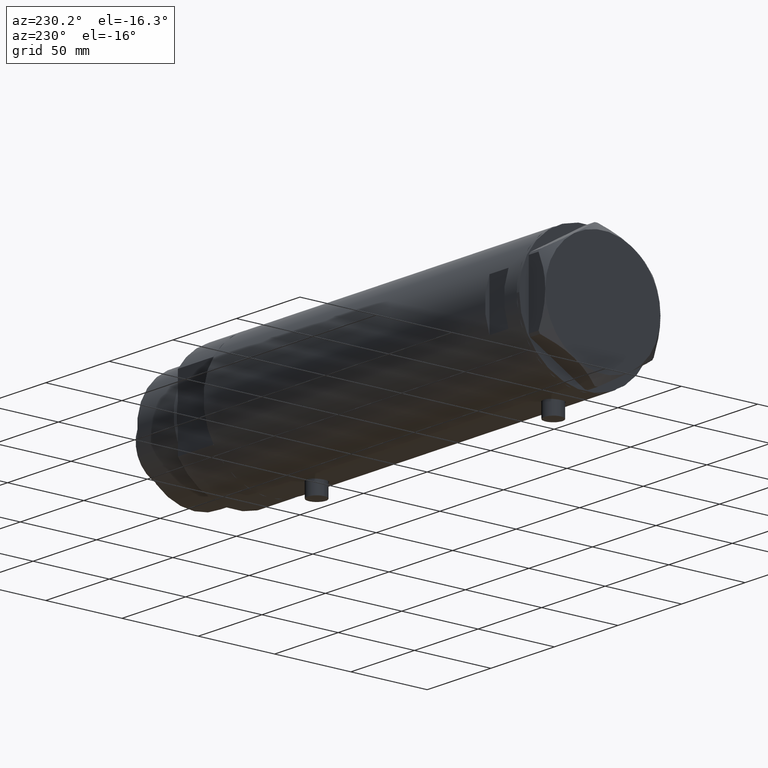
[diagram: clean part render]
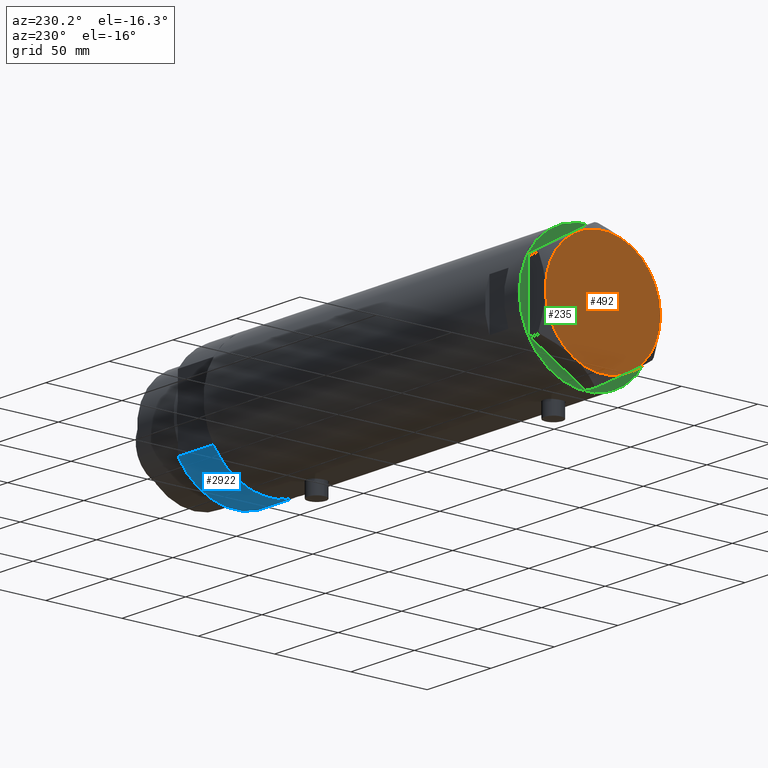
[diagram: same view with three faces highlighted in distinct colors, each labeled with its STEP entity id]
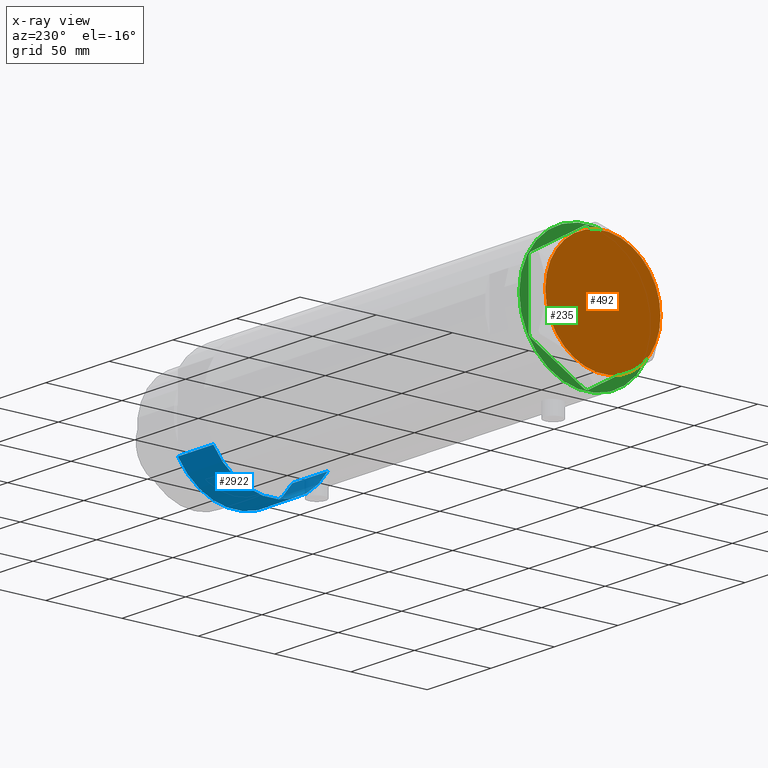
[diagram: x-ray of the same camera — body ghosted, the three highlighted faces saturated]
A machine part, auxiliary view with three faces highlighted in distinct colors.
The next image is the same camera in x-ray (body ghosted, the three faces saturated) — at least one of them is partly hidden behind the body in this view.
Their STEP definitions:

[orange] entity #492 — the highlighted planar face has unit normal (-1, -0, 0).
#17 = ORIENTED_EDGE ( 'NONE', *, *, #2616, .T. ) ;
#62 = CIRCLE ( 'NONE', #2291, 37.75000000000000000 ) ;
#80 = CIRCLE ( 'NONE', #3258, 37.75000000000000000 ) ;
#107 = VERTEX_POINT ( 'NONE', #3582 ) ;
#146 = DIRECTION ( 'NONE',  ( 0.000000000000000000, 0.000000000000000000, 1.000000000000000000 ) ) ;
#176 = CARTESIAN_POINT ( 'NONE',  ( 0.000000000000000000, 0.000000000000000000, 13.00000000000000000 ) ) ;
#196 = DIRECTION ( 'NONE',  ( 0.000000000000000000, 0.000000000000000000, 1.000000000000000000 ) ) ;
#427 = DIRECTION ( 'NONE',  ( 0.000000000000000000, 0.000000000000000000, 1.000000000000000000 ) ) ;
#478 = CARTESIAN_POINT ( 'NONE',  ( 18.87500000000000000, 32.69245899286255508, 13.00000000000000000 ) ) ;
#492 = ADVANCED_FACE ( 'NONE', ( #1419 ), #3197, .T. ) ;
#515 = AXIS2_PLACEMENT_3D ( 'NONE', #1347, #641, #4163 ) ;
#641 = DIRECTION ( 'NONE',  ( 0.000000000000000000, 0.000000000000000000, 1.000000000000000000 ) ) ;
#684 = EDGE_CURVE ( 'NONE', #3015, #3070, #62, .T. ) ;
#735 = CARTESIAN_POINT ( 'NONE',  ( 0.000000000000000000, 0.000000000000000000, 13.00000000000000000 ) ) ;
#789 = DIRECTION ( 'NONE',  ( 1.000000000000000000, 0.000000000000000000, -0.000000000000000000 ) ) ;
#820 = CARTESIAN_POINT ( 'NONE',  ( 0.000000000000000000, 0.000000000000000000, 13.00000000000000000 ) ) ;
#848 = VERTEX_POINT ( 'NONE', #1410 ) ;
#882 = CIRCLE ( 'NONE', #4548, 37.75000000000000000 ) ;
#936 = AXIS2_PLACEMENT_3D ( 'NONE', #735, #2838, #789 ) ;
#957 = CIRCLE ( 'NONE', #4117, 37.75000000000000000 ) ;
#1003 = EDGE_LOOP ( 'NONE', ( #2859, #1971, #1766, #3907, #17, #4032 ) ) ;
#1249 = DIRECTION ( 'NONE',  ( 1.000000000000000000, 0.000000000000000000, 0.000000000000000000 ) ) ;
#1258 = CIRCLE ( 'NONE', #515, 37.75000000000000000 ) ;
#1347 = CARTESIAN_POINT ( 'NONE',  ( 0.000000000000000000, 0.000000000000000000, 13.00000000000000000 ) ) ;
#1410 = CARTESIAN_POINT ( 'NONE',  ( 37.75000000000000711, 1.802777518484591547E-14, 13.00000000000000000 ) ) ;
#1419 = FACE_OUTER_BOUND ( 'NONE', #1003, .T. ) ;
#1552 = AXIS2_PLACEMENT_3D ( 'NONE', #176, #196, #1249 ) ;
#1766 = ORIENTED_EDGE ( 'NONE', *, *, #3900, .T. ) ;
#1802 = DIRECTION ( 'NONE',  ( 1.000000000000000000, 0.000000000000000000, 0.000000000000000000 ) ) ;
#1891 = CARTESIAN_POINT ( 'NONE',  ( 0.000000000000000000, 0.000000000000000000, 13.00000000000000000 ) ) ;
#1971 = ORIENTED_EDGE ( 'NONE', *, *, #2494, .T. ) ;
#1991 = EDGE_CURVE ( 'NONE', #107, #848, #882, .T. ) ;
#2171 = EDGE_CURVE ( 'NONE', #3914, #107, #1258, .T. ) ;
#2291 = AXIS2_PLACEMENT_3D ( 'NONE', #3189, #4233, #1802 ) ;
#2453 = CARTESIAN_POINT ( 'NONE',  ( -37.75000000000000000, -1.201851678989727067E-14, 13.00000000000000000 ) ) ;
#2494 = EDGE_CURVE ( 'NONE', #848, #3928, #3543, .T. ) ;
#2572 = CARTESIAN_POINT ( 'NONE',  ( -18.87499999999999645, -32.69245899286255508, 13.00000000000000000 ) ) ;
#2616 = EDGE_CURVE ( 'NONE', #3070, #3914, #80, .T. ) ;
#2838 = DIRECTION ( 'NONE',  ( 0.000000000000000000, 0.000000000000000000, 1.000000000000000000 ) ) ;
#2859 = ORIENTED_EDGE ( 'NONE', *, *, #1991, .T. ) ;
#2987 = DIRECTION ( 'NONE',  ( 0.000000000000000000, 0.000000000000000000, 1.000000000000000000 ) ) ;
#3015 = VERTEX_POINT ( 'NONE', #4403 ) ;
#3070 = VERTEX_POINT ( 'NONE', #2453 ) ;
#3189 = CARTESIAN_POINT ( 'NONE',  ( 0.000000000000000000, 0.000000000000000000, 13.00000000000000000 ) ) ;
#3197 = PLANE ( 'NONE',  #936 ) ;
#3258 = AXIS2_PLACEMENT_3D ( 'NONE', #4000, #2987, #4364 ) ;
#3305 = DIRECTION ( 'NONE',  ( 1.000000000000000000, 0.000000000000000000, 0.000000000000000000 ) ) ;
#3543 = CIRCLE ( 'NONE', #1552, 37.75000000000000000 ) ;
#3582 = CARTESIAN_POINT ( 'NONE',  ( 18.87499999999998579, -32.69245899286256218, 13.00000000000000000 ) ) ;
#3900 = EDGE_CURVE ( 'NONE', #3928, #3015, #957, .T. ) ;
#3907 = ORIENTED_EDGE ( 'NONE', *, *, #684, .T. ) ;
#3914 = VERTEX_POINT ( 'NONE', #2572 ) ;
#3928 = VERTEX_POINT ( 'NONE', #478 ) ;
#3948 = DIRECTION ( 'NONE',  ( 1.000000000000000000, 0.000000000000000000, 0.000000000000000000 ) ) ;
#4000 = CARTESIAN_POINT ( 'NONE',  ( 0.000000000000000000, 0.000000000000000000, 13.00000000000000000 ) ) ;
#4032 = ORIENTED_EDGE ( 'NONE', *, *, #2171, .T. ) ;
#4117 = AXIS2_PLACEMENT_3D ( 'NONE', #820, #427, #3948 ) ;
#4163 = DIRECTION ( 'NONE',  ( 1.000000000000000000, 0.000000000000000000, 0.000000000000000000 ) ) ;
#4233 = DIRECTION ( 'NONE',  ( 0.000000000000000000, 0.000000000000000000, 1.000000000000000000 ) ) ;
#4364 = DIRECTION ( 'NONE',  ( 1.000000000000000000, 0.000000000000000000, 0.000000000000000000 ) ) ;
#4403 = CARTESIAN_POINT ( 'NONE',  ( -18.87499999999999645, 32.69245899286256218, 13.00000000000000000 ) ) ;
#4548 = AXIS2_PLACEMENT_3D ( 'NONE', #1891, #146, #3305 ) ;

[blue] entity #2922 — the highlighted cylindrical surface (partial cylindrical patch) has radius 44 mm, axis along (-1, -0, 0).
#36 = CARTESIAN_POINT ( 'NONE',  ( 23.01629857296780557, -37.50000000000000000, 0.000000000000000000 ) ) ;
#116 = EDGE_LOOP ( 'NONE', ( #3504, #1532, #2643, #4335 ) ) ;
#216 = AXIS2_PLACEMENT_3D ( 'NONE', #1936, #4441, #2292 ) ;
#252 = CARTESIAN_POINT ( 'NONE',  ( 23.01629857296780557, 37.50000000000000000, 0.000000000000000000 ) ) ;
#290 = CARTESIAN_POINT ( 'NONE',  ( 23.01629857296780557, 37.50000000000000000, 27.89999999999999858 ) ) ;
#546 = CYLINDRICAL_SURFACE ( 'NONE', #216, 44.00000000000000000 ) ;
#937 = DIRECTION ( 'NONE',  ( 1.000000000000000000, 0.000000000000000000, 0.000000000000000000 ) ) ;
#1070 = DIRECTION ( 'NONE',  ( 0.000000000000000000, 0.000000000000000000, 1.000000000000000000 ) ) ;
#1218 = LINE ( 'NONE', #252, #4408 ) ;
#1300 = DIRECTION ( 'NONE',  ( 0.000000000000000000, 0.000000000000000000, 1.000000000000000000 ) ) ;
#1452 = DIRECTION ( 'NONE',  ( -0.000000000000000000, -0.000000000000000000, 1.000000000000000000 ) ) ;
#1532 = ORIENTED_EDGE ( 'NONE', *, *, #1672, .F. ) ;
#1672 = EDGE_CURVE ( 'NONE', #2733, #3821, #3210, .T. ) ;
#1745 = VERTEX_POINT ( 'NONE', #290 ) ;
#1817 = DIRECTION ( 'NONE',  ( 1.000000000000000000, 0.000000000000000000, 0.000000000000000000 ) ) ;
#1862 = CIRCLE ( 'NONE', #4344, 44.00000000000000000 ) ;
#1883 = EDGE_CURVE ( 'NONE', #3821, #1745, #2964, .T. ) ;
#1936 = CARTESIAN_POINT ( 'NONE',  ( 0.000000000000000000, 0.000000000000000000, 27.89999999999999858 ) ) ;
#1975 = FACE_OUTER_BOUND ( 'NONE', #116, .T. ) ;
#2060 = CARTESIAN_POINT ( 'NONE',  ( 23.01629857296780557, -37.50000000000000000, 27.89999999999999858 ) ) ;
#2139 = AXIS2_PLACEMENT_3D ( 'NONE', #3180, #1070, #1817 ) ;
#2292 = DIRECTION ( 'NONE',  ( -1.000000000000000000, 0.000000000000000000, 0.000000000000000000 ) ) ;
#2402 = VERTEX_POINT ( 'NONE', #2905 ) ;
#2643 = ORIENTED_EDGE ( 'NONE', *, *, #3720, .T. ) ;
#2733 = VERTEX_POINT ( 'NONE', #3912 ) ;
#2905 = CARTESIAN_POINT ( 'NONE',  ( 23.01629857296780557, 37.50000000000000000, 0.000000000000000000 ) ) ;
#2922 = ADVANCED_FACE ( 'NONE', ( #1975 ), #546, .T. ) ;
#2950 = EDGE_CURVE ( 'NONE', #2402, #1745, #1218, .T. ) ;
#2964 = CIRCLE ( 'NONE', #2139, 44.00000000000000000 ) ;
#3180 = CARTESIAN_POINT ( 'NONE',  ( 0.000000000000000000, 0.000000000000000000, 27.89999999999999858 ) ) ;
#3210 = LINE ( 'NONE', #36, #3895 ) ;
#3504 = ORIENTED_EDGE ( 'NONE', *, *, #1883, .F. ) ;
#3720 = EDGE_CURVE ( 'NONE', #2733, #2402, #1862, .T. ) ;
#3773 = DIRECTION ( 'NONE',  ( -0.000000000000000000, -0.000000000000000000, 1.000000000000000000 ) ) ;
#3821 = VERTEX_POINT ( 'NONE', #2060 ) ;
#3895 = VECTOR ( 'NONE', #1452, 1000.000000000000000 ) ;
#3912 = CARTESIAN_POINT ( 'NONE',  ( 23.01629857296780557, -37.50000000000000000, 0.000000000000000000 ) ) ;
#4335 = ORIENTED_EDGE ( 'NONE', *, *, #2950, .T. ) ;
#4344 = AXIS2_PLACEMENT_3D ( 'NONE', #4435, #1300, #937 ) ;
#4408 = VECTOR ( 'NONE', #3773, 1000.000000000000000 ) ;
#4435 = CARTESIAN_POINT ( 'NONE',  ( 0.000000000000000000, 0.000000000000000000, 0.000000000000000000 ) ) ;
#4441 = DIRECTION ( 'NONE',  ( -0.000000000000000000, -0.000000000000000000, -1.000000000000000000 ) ) ;

[green] entity #235 — the highlighted planar face has unit normal (1, 0, -0).
#77 = EDGE_CURVE ( 'NONE', #3870, #4129, #1178, .T. ) ;
#165 = CARTESIAN_POINT ( 'NONE',  ( 44.00000000000000000, 0.000000000000000000, 0.000000000000000000 ) ) ;
#235 = ADVANCED_FACE ( 'NONE', ( #1297, #2806 ), #2831, .F. ) ;
#244 = VERTEX_POINT ( 'NONE', #2435 ) ;
#282 = EDGE_CURVE ( 'NONE', #2585, #3029, #675, .T. ) ;
#354 = LINE ( 'NONE', #4539, #1317 ) ;
#356 = VECTOR ( 'NONE', #2645, 1000.000000000000000 ) ;
#456 = VERTEX_POINT ( 'NONE', #3492 ) ;
#459 = CARTESIAN_POINT ( 'NONE',  ( 0.000000000000000000, 43.58994532381674247, 0.000000000000000000 ) ) ;
#477 = ORIENTED_EDGE ( 'NONE', *, *, #1913, .F. ) ;
#491 = DIRECTION ( 'NONE',  ( 0.8660254037844385966, -0.4999999999999998890, 0.000000000000000000 ) ) ;
#503 = CARTESIAN_POINT ( 'NONE',  ( -0.9699484522385920515, -43.02994532381674020, 0.000000000000000000 ) ) ;
#512 = LINE ( 'NONE', #3207, #1546 ) ;
#545 = DIRECTION ( 'NONE',  ( -1.000000000000000000, -0.000000000000000000, -0.000000000000000000 ) ) ;
#573 = VECTOR ( 'NONE', #4330, 1000.000000000000114 ) ;
#582 = CARTESIAN_POINT ( 'NONE',  ( -37.74999999999999289, -20.67497266190837379, 0.000000000000000000 ) ) ;
#595 = AXIS2_PLACEMENT_3D ( 'NONE', #1580, #2985, #839 ) ;
#597 = CARTESIAN_POINT ( 'NONE',  ( 0.9699484522385760643, -43.02994532381674020, 0.000000000000000000 ) ) ;
#598 = EDGE_CURVE ( 'NONE', #4211, #2703, #917, .T. ) ;
#675 = LINE ( 'NONE', #2092, #3885 ) ;
#702 = VERTEX_POINT ( 'NONE', #503 ) ;
#727 = CARTESIAN_POINT ( 'NONE',  ( 37.26502577388077242, -21.51497266190830260, 0.000000000000000000 ) ) ;
#752 = ORIENTED_EDGE ( 'NONE', *, *, #2233, .T. ) ;
#753 = ORIENTED_EDGE ( 'NONE', *, *, #4399, .T. ) ;
#794 = CARTESIAN_POINT ( 'NONE',  ( -36.78005154776143826, 22.35497266190836996, 0.000000000000000000 ) ) ;
#803 = EDGE_CURVE ( 'NONE', #2165, #2398, #354, .T. ) ;
#839 = DIRECTION ( 'NONE',  ( -1.000000000000000000, 0.000000000000000000, 0.000000000000000000 ) ) ;
#841 = CARTESIAN_POINT ( 'NONE',  ( 36.78005154776142405, 22.35497266190837706, 0.000000000000000000 ) ) ;
#903 = ORIENTED_EDGE ( 'NONE', *, *, #4373, .T. ) ;
#917 = LINE ( 'NONE', #1253, #573 ) ;
#1025 = LINE ( 'NONE', #3843, #3113 ) ;
#1051 = CARTESIAN_POINT ( 'NONE',  ( 0.000000000000000000, 0.000000000000000000, 0.000000000000000000 ) ) ;
#1060 = EDGE_CURVE ( 'NONE', #3273, #456, #512, .T. ) ;
#1062 = VERTEX_POINT ( 'NONE', #165 ) ;
#1087 = CARTESIAN_POINT ( 'NONE',  ( 37.75000000000002132, -20.67497266190835958, 0.000000000000000000 ) ) ;
#1104 = ORIENTED_EDGE ( 'NONE', *, *, #4040, .F. ) ;
#1178 = LINE ( 'NONE', #4256, #2662 ) ;
#1253 = CARTESIAN_POINT ( 'NONE',  ( -37.26502577388077242, 21.51497266190828483, 0.000000000000000000 ) ) ;
#1297 = FACE_BOUND ( 'NONE', #4176, .T. ) ;
#1317 = VECTOR ( 'NONE', #1774, 1000.000000000000000 ) ;
#1324 = VECTOR ( 'NONE', #1837, 999.9999999999998863 ) ;
#1387 = AXIS2_PLACEMENT_3D ( 'NONE', #1051, #2763, #3445 ) ;
#1542 = DIRECTION ( 'NONE',  ( 3.183713056926429451E-16, -1.000000000000000000, 0.000000000000000000 ) ) ;
#1546 = VECTOR ( 'NONE', #1843, 1000.000000000000114 ) ;
#1555 = LINE ( 'NONE', #3654, #3696 ) ;
#1580 = CARTESIAN_POINT ( 'NONE',  ( 0.000000000000000000, 0.000000000000000000, 0.000000000000000000 ) ) ;
#1585 = ORIENTED_EDGE ( 'NONE', *, *, #598, .T. ) ;
#1718 = ORIENTED_EDGE ( 'NONE', *, *, #1797, .F. ) ;
#1774 = DIRECTION ( 'NONE',  ( -4.775569585389645902E-16, 1.000000000000000000, 0.000000000000000000 ) ) ;
#1791 = CARTESIAN_POINT ( 'NONE',  ( -37.75000000000000711, 20.67497266190837024, 0.000000000000000000 ) ) ;
#1797 = EDGE_CURVE ( 'NONE', #1062, #4302, #4178, .T. ) ;
#1803 = EDGE_LOOP ( 'NONE', ( #1718, #1104 ) ) ;
#1837 = DIRECTION ( 'NONE',  ( 0.4999999999999993894, -0.8660254037844390407, -0.000000000000000000 ) ) ;
#1843 = DIRECTION ( 'NONE',  ( 0.8660254037844388186, 0.4999999999999997224, 0.000000000000000000 ) ) ;
#1867 = CIRCLE ( 'NONE', #595, 44.00000000000000000 ) ;
#1913 = EDGE_CURVE ( 'NONE', #244, #2703, #2986, .T. ) ;
#1926 = VECTOR ( 'NONE', #1542, 1000.000000000000000 ) ;
#1978 = DIRECTION ( 'NONE',  ( 0.000000000000000000, 0.000000000000000000, -1.000000000000000000 ) ) ;
#2036 = CARTESIAN_POINT ( 'NONE',  ( 0.000000000000000000, 0.000000000000000000, 0.000000000000000000 ) ) ;
#2069 = DIRECTION ( 'NONE',  ( 1.000000000000000000, -0.000000000000000000, -0.000000000000000000 ) ) ;
#2092 = CARTESIAN_POINT ( 'NONE',  ( 37.75000000000000000, 21.79497266190837124, 0.000000000000000000 ) ) ;
#2165 = VERTEX_POINT ( 'NONE', #1087 ) ;
#2233 = EDGE_CURVE ( 'NONE', #2585, #2398, #4350, .T. ) ;
#2277 = ORIENTED_EDGE ( 'NONE', *, *, #803, .F. ) ;
#2398 = VERTEX_POINT ( 'NONE', #4547 ) ;
#2435 = CARTESIAN_POINT ( 'NONE',  ( -0.9699484522385801721, 43.02994532381674020, 0.000000000000000000 ) ) ;
#2543 = ORIENTED_EDGE ( 'NONE', *, *, #3491, .F. ) ;
#2578 = CARTESIAN_POINT ( 'NONE',  ( -37.75000000000000711, 21.79497266190837124, 0.000000000000000000 ) ) ;
#2580 = ORIENTED_EDGE ( 'NONE', *, *, #2748, .F. ) ;
#2581 = EDGE_CURVE ( 'NONE', #3273, #702, #2966, .T. ) ;
#2585 = VERTEX_POINT ( 'NONE', #841 ) ;
#2586 = DIRECTION ( 'NONE',  ( -0.5000000000000002220, 0.8660254037844385966, -0.000000000000000000 ) ) ;
#2602 = AXIS2_PLACEMENT_3D ( 'NONE', #2036, #1978, #2737 ) ;
#2645 = DIRECTION ( 'NONE',  ( -0.8660254037844387076, -0.4999999999999998890, 0.000000000000000000 ) ) ;
#2657 = CARTESIAN_POINT ( 'NONE',  ( 37.26502577388072979, 21.51497266190834523, 0.000000000000000000 ) ) ;
#2662 = VECTOR ( 'NONE', #2586, 999.9999999999998863 ) ;
#2703 = VERTEX_POINT ( 'NONE', #794 ) ;
#2737 = DIRECTION ( 'NONE',  ( -1.000000000000000000, 0.000000000000000000, 0.000000000000000000 ) ) ;
#2748 = EDGE_CURVE ( 'NONE', #4211, #4129, #2899, .T. ) ;
#2763 = DIRECTION ( 'NONE',  ( 0.000000000000000000, 0.000000000000000000, -1.000000000000000000 ) ) ;
#2806 = FACE_OUTER_BOUND ( 'NONE', #1803, .T. ) ;
#2831 = PLANE ( 'NONE',  #1387 ) ;
#2899 = LINE ( 'NONE', #2578, #1926 ) ;
#2966 = LINE ( 'NONE', #3709, #3546 ) ;
#2985 = DIRECTION ( 'NONE',  ( 0.000000000000000000, 0.000000000000000000, -1.000000000000000000 ) ) ;
#2986 = LINE ( 'NONE', #459, #356 ) ;
#3029 = VERTEX_POINT ( 'NONE', #3751 ) ;
#3113 = VECTOR ( 'NONE', #2069, 1000.000000000000000 ) ;
#3207 = CARTESIAN_POINT ( 'NONE',  ( -4.107234936485837051E-15, -43.58994532381674247, 0.000000000000000000 ) ) ;
#3220 = CARTESIAN_POINT ( 'NONE',  ( -44.00000000000000000, 5.388445916248353619E-15, 0.000000000000000000 ) ) ;
#3273 = VERTEX_POINT ( 'NONE', #597 ) ;
#3292 = ORIENTED_EDGE ( 'NONE', *, *, #77, .T. ) ;
#3331 = ORIENTED_EDGE ( 'NONE', *, *, #282, .F. ) ;
#3445 = DIRECTION ( 'NONE',  ( -1.000000000000000000, 0.000000000000000000, -0.000000000000000000 ) ) ;
#3491 = EDGE_CURVE ( 'NONE', #3870, #702, #1555, .T. ) ;
#3492 = CARTESIAN_POINT ( 'NONE',  ( 36.78005154776143115, -22.35497266190837706, 0.000000000000000000 ) ) ;
#3546 = VECTOR ( 'NONE', #545, 1000.000000000000000 ) ;
#3654 = CARTESIAN_POINT ( 'NONE',  ( -37.74999999999999289, -21.79497266190838189, 0.000000000000000000 ) ) ;
#3655 = ORIENTED_EDGE ( 'NONE', *, *, #1060, .F. ) ;
#3696 = VECTOR ( 'NONE', #491, 1000.000000000000227 ) ;
#3709 = CARTESIAN_POINT ( 'NONE',  ( 0.000000000000000000, -43.02994532381674020, 0.000000000000000000 ) ) ;
#3751 = CARTESIAN_POINT ( 'NONE',  ( 0.9699484522385850571, 43.02994532381674020, 0.000000000000000000 ) ) ;
#3843 = CARTESIAN_POINT ( 'NONE',  ( 0.000000000000000000, 43.02994532381674020, 0.000000000000000000 ) ) ;
#3870 = VERTEX_POINT ( 'NONE', #3883 ) ;
#3881 = ORIENTED_EDGE ( 'NONE', *, *, #2581, .T. ) ;
#3883 = CARTESIAN_POINT ( 'NONE',  ( -36.78005154776141694, -22.35497266190838772, 0.000000000000000000 ) ) ;
#3885 = VECTOR ( 'NONE', #4466, 1000.000000000000227 ) ;
#4040 = EDGE_CURVE ( 'NONE', #4302, #1062, #1867, .T. ) ;
#4129 = VERTEX_POINT ( 'NONE', #582 ) ;
#4176 = EDGE_LOOP ( 'NONE', ( #3331, #752, #2277, #903, #3655, #3881, #2543, #3292, #2580, #1585, #477, #753 ) ) ;
#4178 = CIRCLE ( 'NONE', #2602, 44.00000000000000000 ) ;
#4211 = VERTEX_POINT ( 'NONE', #1791 ) ;
#4230 = LINE ( 'NONE', #727, #4279 ) ;
#4256 = CARTESIAN_POINT ( 'NONE',  ( -37.26502577388070847, -21.51497266190838076, 0.000000000000000000 ) ) ;
#4279 = VECTOR ( 'NONE', #4513, 1000.000000000000227 ) ;
#4302 = VERTEX_POINT ( 'NONE', #3220 ) ;
#4330 = DIRECTION ( 'NONE',  ( 0.4999999999999978351, 0.8660254037844398178, -0.000000000000000000 ) ) ;
#4350 = LINE ( 'NONE', #2657, #1324 ) ;
#4373 = EDGE_CURVE ( 'NONE', #2165, #456, #4230, .T. ) ;
#4399 = EDGE_CURVE ( 'NONE', #244, #3029, #1025, .T. ) ;
#4466 = DIRECTION ( 'NONE',  ( -0.8660254037844385966, 0.5000000000000000000, 0.000000000000000000 ) ) ;
#4513 = DIRECTION ( 'NONE',  ( -0.4999999999999981681, -0.8660254037844395958, -0.000000000000000000 ) ) ;
#4539 = CARTESIAN_POINT ( 'NONE',  ( 37.75000000000002132, -21.79497266190837124, 0.000000000000000000 ) ) ;
#4547 = CARTESIAN_POINT ( 'NONE',  ( 37.75000000000000000, 20.67497266190835958, 0.000000000000000000 ) ) ;